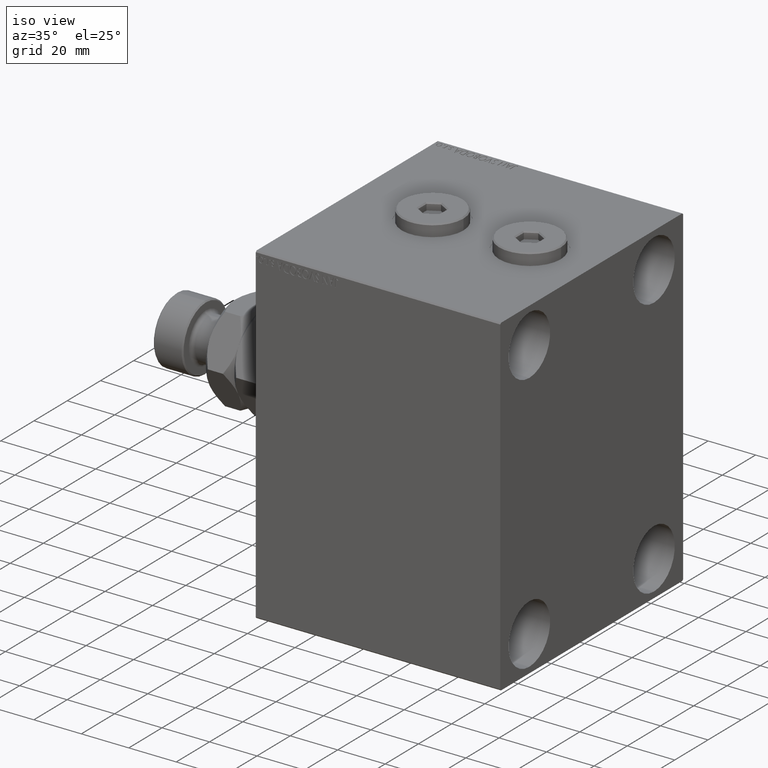
[diagram: clean part render]
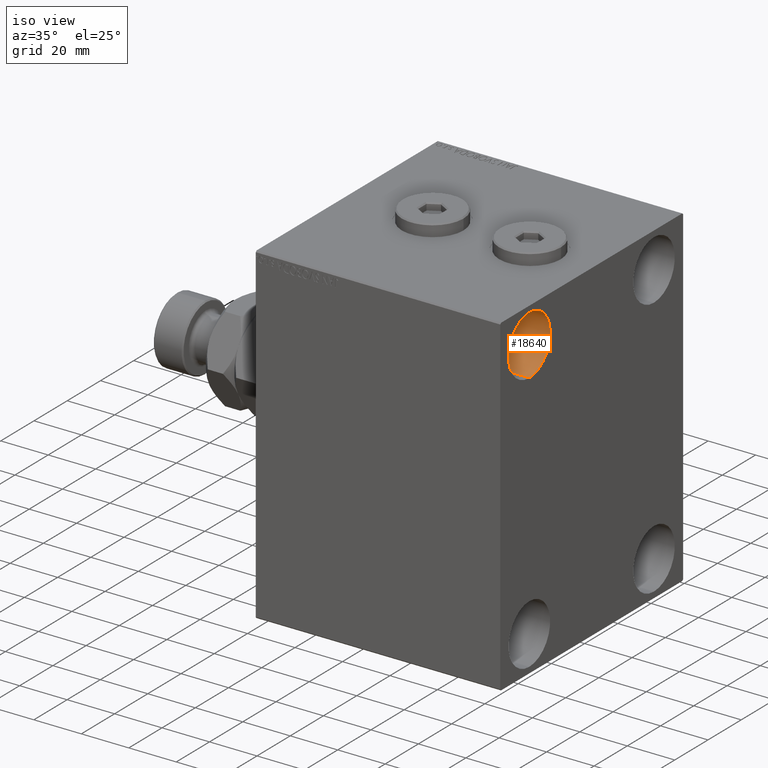
[diagram: same view with one face highlighted and labeled with its STEP entity id]
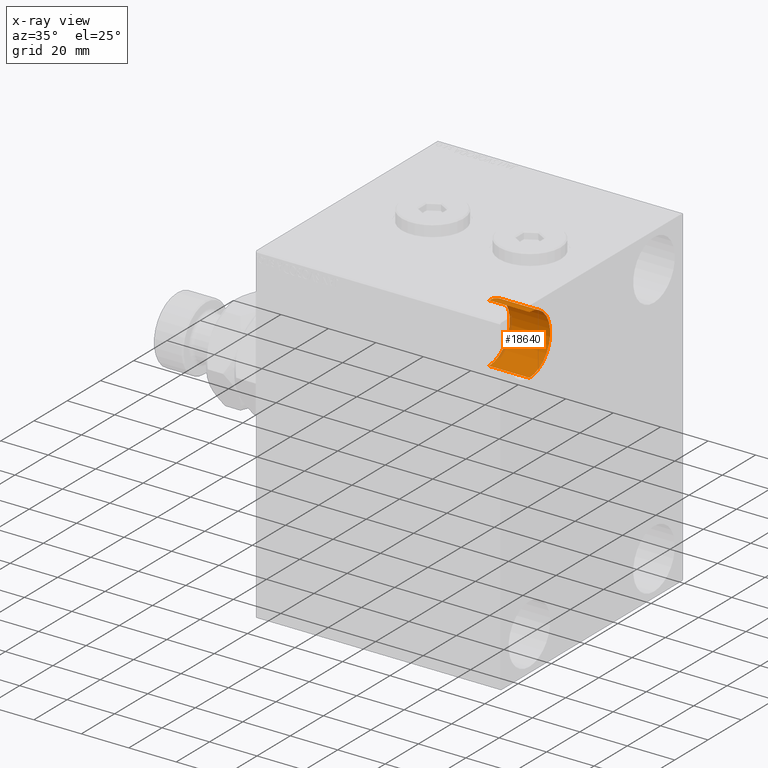
[diagram: x-ray of the same camera — body ghosted, the highlighted face saturated]
A machine part, iso view. The second image highlights one B-rep face of the part: STEP entity #18640.
The next image is the same camera in x-ray: the body ghosted, the highlighted face saturated — about 4% of this face is hidden behind the body in this view.
In plain terms, the highlighted cylindrical surface (edge-blend (fillet) strip) has radius 12.5 mm, axis along (1, 0, 0).
Its self-contained STEP definition (entity closure, byte-faithful):
#292 = VERTEX_POINT ( 'NONE', #27396 ) ;
#1717 = ORIENTED_EDGE ( 'NONE', *, *, #31693, .F. ) ;
#2396 = CARTESIAN_POINT ( 'NONE',  ( 86.00000000000000000, -37.50000000000000711, 55.00000000000000711 ) ) ;
#4352 = VERTEX_POINT ( 'NONE', #13602 ) ;
#4889 = FACE_OUTER_BOUND ( 'NONE', #15460, .T. ) ;
#5605 = EDGE_CURVE ( 'NONE', #4352, #27556, #26301, .T. ) ;
#5718 = DIRECTION ( 'NONE',  ( 0.000000000000000000, 0.000000000000000000, 1.000000000000000000 ) ) ;
#6889 = ORIENTED_EDGE ( 'NONE', *, *, #5605, .T. ) ;
#8283 = CARTESIAN_POINT ( 'NONE',  ( 86.00000000000000000, -37.50000000000000711, 42.50000000000000711 ) ) ;
#10285 = CARTESIAN_POINT ( 'NONE',  ( 103.0000000000000000, -37.50000000000000711, 55.00000000000000711 ) ) ;
#12374 = AXIS2_PLACEMENT_3D ( 'NONE', #2396, #27279, #5718 ) ;
#12586 = ORIENTED_EDGE ( 'NONE', *, *, #42677, .F. ) ;
#13602 = CARTESIAN_POINT ( 'NONE',  ( 86.00000000000000000, -37.50000000000000711, 42.50000000000000711 ) ) ;
#15455 = CARTESIAN_POINT ( 'NONE',  ( 86.00000000000000000, -37.50000000000000711, 67.50000000000000000 ) ) ;
#15460 = EDGE_LOOP ( 'NONE', ( #12586, #33367, #6889, #1717 ) ) ;
#15786 = CYLINDRICAL_SURFACE ( 'NONE', #34076, 12.49999999999999645 ) ;
#16136 = CIRCLE ( 'NONE', #12374, 12.49999999999999645 ) ;
#18555 = LINE ( 'NONE', #15455, #33634 ) ;
#18640 = ADVANCED_FACE ( 'NONE', ( #4889 ), #15786, .F. ) ;
#19163 = CARTESIAN_POINT ( 'NONE',  ( 103.0000000000000000, -37.50000000000000711, 42.50000000000000711 ) ) ;
#22325 = DIRECTION ( 'NONE',  ( 1.000000000000000000, -0.000000000000000000, -0.000000000000000000 ) ) ;
#24731 = DIRECTION ( 'NONE',  ( -1.000000000000000000, -0.000000000000000000, -0.000000000000000000 ) ) ;
#26301 = LINE ( 'NONE', #8283, #28313 ) ;
#27279 = DIRECTION ( 'NONE',  ( -1.000000000000000000, -0.000000000000000000, -0.000000000000000000 ) ) ;
#27324 = EDGE_CURVE ( 'NONE', #37025, #4352, #16136, .T. ) ;
#27396 = CARTESIAN_POINT ( 'NONE',  ( 103.0000000000000000, -37.50000000000000711, 67.50000000000000000 ) ) ;
#27556 = VERTEX_POINT ( 'NONE', #19163 ) ;
#28313 = VECTOR ( 'NONE', #41227, 1000.000000000000000 ) ;
#30934 = DIRECTION ( 'NONE',  ( 1.000000000000000000, -0.000000000000000000, -0.000000000000000000 ) ) ;
#31693 = EDGE_CURVE ( 'NONE', #292, #27556, #38123, .T. ) ;
#33367 = ORIENTED_EDGE ( 'NONE', *, *, #27324, .T. ) ;
#33634 = VECTOR ( 'NONE', #22325, 1000.000000000000000 ) ;
#34076 = AXIS2_PLACEMENT_3D ( 'NONE', #38032, #30934, #44921 ) ;
#37025 = VERTEX_POINT ( 'NONE', #38507 ) ;
#38032 = CARTESIAN_POINT ( 'NONE',  ( 86.00000000000000000, -37.50000000000000711, 55.00000000000000711 ) ) ;
#38123 = CIRCLE ( 'NONE', #45701, 12.49999999999999645 ) ;
#38255 = DIRECTION ( 'NONE',  ( 0.000000000000000000, 0.000000000000000000, 1.000000000000000000 ) ) ;
#38507 = CARTESIAN_POINT ( 'NONE',  ( 86.00000000000000000, -37.50000000000000711, 67.50000000000000000 ) ) ;
#41227 = DIRECTION ( 'NONE',  ( 1.000000000000000000, -0.000000000000000000, -0.000000000000000000 ) ) ;
#42677 = EDGE_CURVE ( 'NONE', #37025, #292, #18555, .T. ) ;
#44921 = DIRECTION ( 'NONE',  ( 0.000000000000000000, 0.000000000000000000, -1.000000000000000000 ) ) ;
#45701 = AXIS2_PLACEMENT_3D ( 'NONE', #10285, #24731, #38255 ) ;